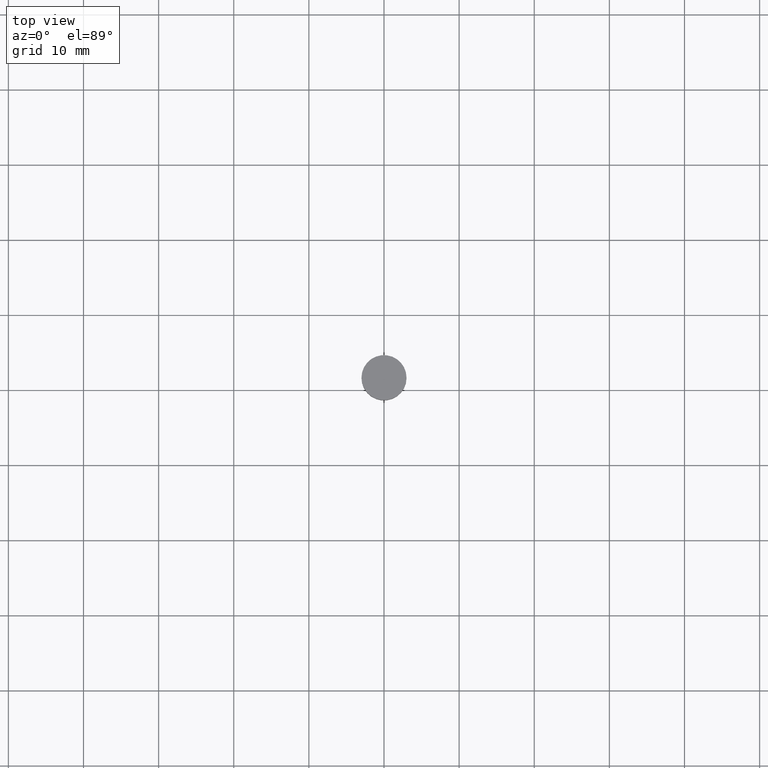
[diagram: clean part render]
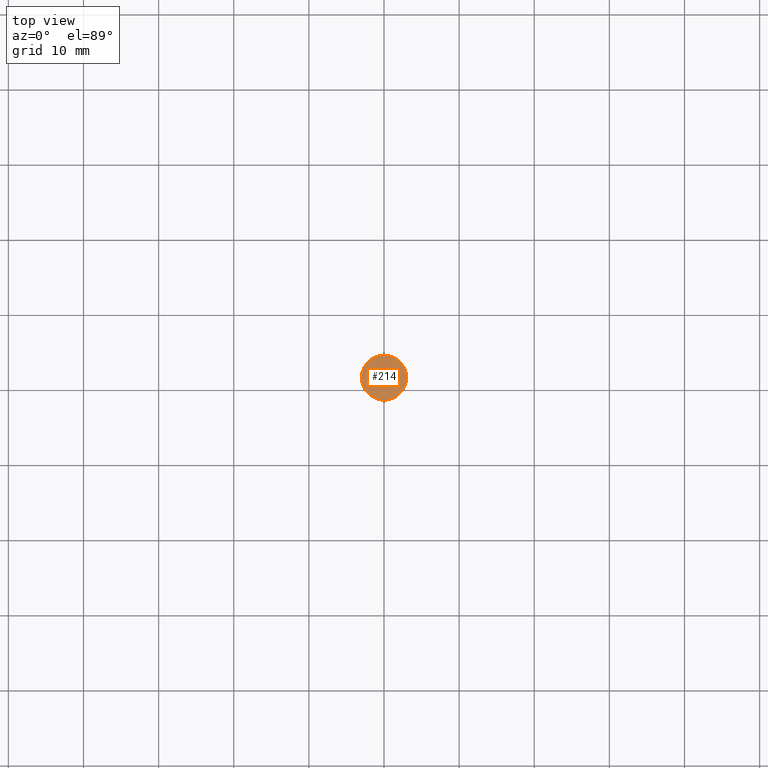
[diagram: same view with one face highlighted and labeled with its STEP entity id]
A machine part, top view. The second image highlights one B-rep face of the part: STEP entity #214.
In plain terms, the highlighted planar face has unit normal (0, -0, 1).
Its self-contained STEP definition (entity closure, byte-faithful):
#3 = VERTEX_POINT ( 'NONE', #273 ) ;
#15 = ORIENTED_EDGE ( 'NONE', *, *, #261, .T. ) ;
#53 = CARTESIAN_POINT ( 'NONE',  ( 0.000000000000000000, 0.000000000000000000, -3.673940397442059868E-16 ) ) ;
#61 = EDGE_CURVE ( 'NONE', #253, #3, #163, .T. ) ;
#112 = DIRECTION ( 'NONE',  ( 0.000000000000000000, -0.000000000000000000, 1.000000000000000000 ) ) ;
#120 = CARTESIAN_POINT ( 'NONE',  ( 0.000000000000000000, 0.000000000000000000, -3.673940397442059868E-16 ) ) ;
#140 = AXIS2_PLACEMENT_3D ( 'NONE', #120, #153, #329 ) ;
#153 = DIRECTION ( 'NONE',  ( -0.000000000000000000, -0.000000000000000000, 1.000000000000000000 ) ) ;
#163 = CIRCLE ( 'NONE', #275, 3.000000000000000000 ) ;
#191 = FACE_OUTER_BOUND ( 'NONE', #320, .T. ) ;
#195 = DIRECTION ( 'NONE',  ( 1.000000000000000000, 0.000000000000000000, 0.000000000000000000 ) ) ;
#197 = DIRECTION ( 'NONE',  ( 1.000000000000000000, 0.000000000000000000, 0.000000000000000000 ) ) ;
#204 = DIRECTION ( 'NONE',  ( -0.000000000000000000, -0.000000000000000000, 1.000000000000000000 ) ) ;
#214 = ADVANCED_FACE ( 'NONE', ( #191 ), #296, .T. ) ;
#241 = ORIENTED_EDGE ( 'NONE', *, *, #61, .T. ) ;
#248 = CIRCLE ( 'NONE', #140, 3.000000000000000000 ) ;
#253 = VERTEX_POINT ( 'NONE', #334 ) ;
#261 = EDGE_CURVE ( 'NONE', #3, #253, #248, .T. ) ;
#273 = CARTESIAN_POINT ( 'NONE',  ( -3.000000000000000000, 3.673940397442059868E-16, -3.673940397442059868E-16 ) ) ;
#275 = AXIS2_PLACEMENT_3D ( 'NONE', #53, #204, #197 ) ;
#296 = PLANE ( 'NONE',  #346 ) ;
#320 = EDGE_LOOP ( 'NONE', ( #241, #15 ) ) ;
#328 = CARTESIAN_POINT ( 'NONE',  ( 0.000000000000000000, 0.000000000000000000, -1.836970198721029934E-16 ) ) ;
#329 = DIRECTION ( 'NONE',  ( 1.000000000000000000, 0.000000000000000000, 0.000000000000000000 ) ) ;
#334 = CARTESIAN_POINT ( 'NONE',  ( 3.000000000000000000, 0.000000000000000000, -3.673940397442059868E-16 ) ) ;
#346 = AXIS2_PLACEMENT_3D ( 'NONE', #328, #112, #195 ) ;